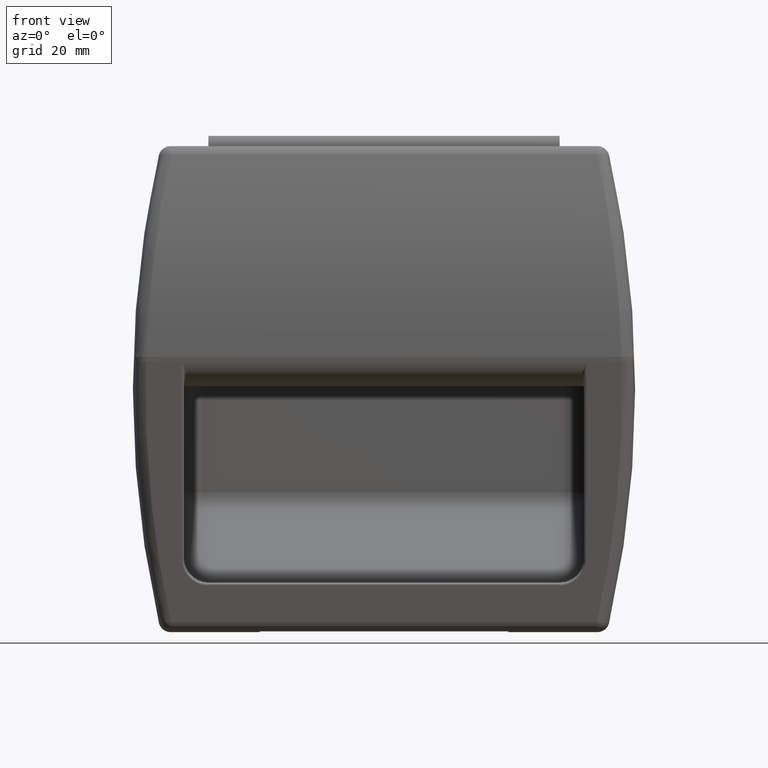
[diagram: clean part render]
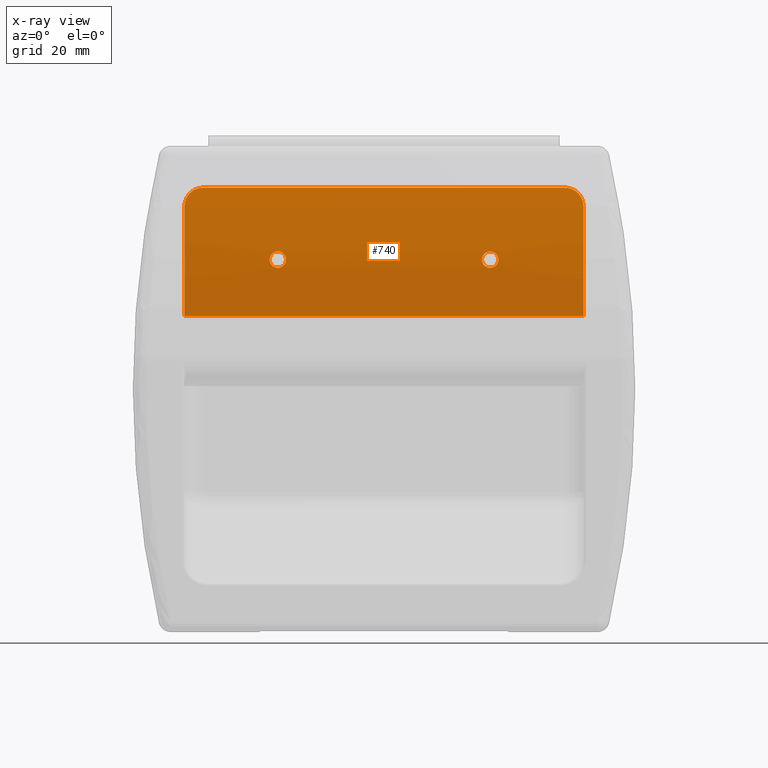
[diagram: x-ray — body ghosted, one internal face saturated and labeled with its STEP entity id]
A machine part, front view, then the same camera in x-ray: the body is ghosted and one INTERNAL B-rep face — a face not visible from any outside direction — is saturated and labeled: STEP entity #740.
In plain terms, the highlighted cylindrical surface (partial cylindrical patch) has radius 150 mm, axis along (1, 0, 0).
Its self-contained STEP definition (entity closure, byte-faithful):
#740=ADVANCED_FACE('',(#6782,#6783,#6784),#6781,.F.);
#6781=CYLINDRICAL_SURFACE('',#13339,1.50000000000E+002);
#6782=FACE_OUTER_BOUND('',#13340,.T.);
#6783=FACE_BOUND('',#13341,.T.);
#6784=FACE_BOUND('',#13342,.T.);
#13336=CARTESIAN_POINT('',(-1.00000000000E+003,-1.47175836261E+002,-2.67430042286E+000));
#13337=DIRECTION('',(-1.00000000000E+000,-0.00000000000E+000,0.00000000000E+000));
#13338=DIRECTION('',(0.00000000000E+000,-0.00000000000E+000,1.00000000000E+000));
#13339=AXIS2_PLACEMENT_3D('',#13336,#13337,#13338);
#13340=EDGE_LOOP('',(#18060,#18061,#18062,#18063,#18064,#18065));
#13341=EDGE_LOOP('',(#18066,#18067));
#13342=EDGE_LOOP('',(#18068,#18069));
#18060=ORIENTED_EDGE('',*,*,#20086,.T.);
#18061=ORIENTED_EDGE('',*,*,#20237,.T.);
#18062=ORIENTED_EDGE('',*,*,#20238,.T.);
#18063=ORIENTED_EDGE('',*,*,#20239,.F.);
#18064=ORIENTED_EDGE('',*,*,#19893,.F.);
#18065=ORIENTED_EDGE('',*,*,#20087,.T.);
#18066=ORIENTED_EDGE('',*,*,#20240,.T.);
#18067=ORIENTED_EDGE('',*,*,#20241,.T.);
#18068=ORIENTED_EDGE('',*,*,#20242,.F.);
#18069=ORIENTED_EDGE('',*,*,#20243,.F.);
#19893=EDGE_CURVE('',#28835,#28843,#28844,.T.);
#20086=EDGE_CURVE('',#30137,#30144,#30151,.T.);
#20087=EDGE_CURVE('',#28835,#30137,#30157,.T.);
#20237=EDGE_CURVE('',#30144,#30198,#31154,.T.);
#20238=EDGE_CURVE('',#30198,#28892,#31160,.T.);
#20239=EDGE_CURVE('',#28843,#28892,#31166,.T.);
#20240=EDGE_CURVE('',#31172,#31173,#31174,.T.);
#20241=EDGE_CURVE('',#31173,#31172,#31180,.T.);
#20242=EDGE_CURVE('',#31186,#31187,#31188,.T.);
#20243=EDGE_CURVE('',#31187,#31186,#31194,.T.);
#28835=VERTEX_POINT('',#37737);
#28843=VERTEX_POINT('',#37743);
#28844=(BOUNDED_CURVE() B_SPLINE_CURVE(3,(#37744,#37745,#37746,#37747,#37748,#37749,#37750,#37751,#37752,#37753,#37754,#37755,#37756,#37757,#37758,#37759,#37760,#37761),.UNSPECIFIED.,.F.,.F.) B_SPLINE_CURVE_WITH_KNOTS((4,2,2,2,2,2,2,2,4),(0.00000000000E+000,9.08258828072E-004,1.81651765614E-003,2.72477648422E-003,3.63303531229E-003,4.54129414036E-003,5.44955296843E-003,6.35781179650E-003,7.26607062457E-003),.UNSPECIFIED.) CURVE() GEOMETRIC_REPRESENTATION_ITEM() RATIONAL_B_SPLINE_CURVE((1.00000000000E+000,1.00000000000E+000,1.00000000000E+000,1.00000000000E+000,1.00000000000E+000,1.00000000000E+000,1.00000000000E+000,1.00000000000E+000,1.00000000000E+000,1.00000000000E+000,1.00000000000E+000,1.00000000000E+000,1.00000000000E+000,1.00000000000E+000,1.00000000000E+000,1.00000000000E+000,1.00000000000E+000,1.00000000000E+000)) REPRESENTATION_ITEM('') );
#28892=VERTEX_POINT('',#37804);
#30137=VERTEX_POINT('',#38889);
#30144=VERTEX_POINT('',#38894);
#30151=(BOUNDED_CURVE() B_SPLINE_CURVE(3,(#38899,#38900,#38901,#38902,#38903,#38904,#38905,#38906,#38907,#38908,#38909,#38910,#38911,#38912,#38913,#38914,#38915,#38916),.UNSPECIFIED.,.F.,.F.) B_SPLINE_CURVE_WITH_KNOTS((4,2,2,2,2,2,2,2,4),(0.00000000000E+000,9.08258828072E-004,1.81651765614E-003,2.72477648422E-003,3.63303531229E-003,4.54129414036E-003,5.44955296843E-003,6.35781179650E-003,7.26607062457E-003),.UNSPECIFIED.) CURVE() GEOMETRIC_REPRESENTATION_ITEM() RATIONAL_B_SPLINE_CURVE((1.00000000000E+000,1.00000000000E+000,1.00000000000E+000,1.00000000000E+000,1.00000000000E+000,1.00000000000E+000,1.00000000000E+000,1.00000000000E+000,1.00000000000E+000,1.00000000000E+000,1.00000000000E+000,1.00000000000E+000,1.00000000000E+000,1.00000000000E+000,1.00000000000E+000,1.00000000000E+000,1.00000000000E+000,1.00000000000E+000)) REPRESENTATION_ITEM('') );
#30157=LINE('',#38917,#38918);
#30198=VERTEX_POINT('',#38942);
#31154=CIRCLE('',#39637,1.50000000000E+002);
#31160=LINE('',#39638,#39639);
#31166=CIRCLE('',#39644,1.50000000000E+002);
#31172=VERTEX_POINT('',#39645);
#31173=VERTEX_POINT('',#39646);
#31174=(BOUNDED_CURVE() B_SPLINE_CURVE(3,(#39647,#39648,#39649,#39650,#39651,#39652,#39653,#39654,#39655,#39656,#39657,#39658,#39659,#39660,#39661,#39662,#39663,#39664,#39665,#39666,#39667,#39668,#39669,#39670,#39671,#39672,#39673,#39674,#39675,#39676,#39677,#39678),.UNSPECIFIED.,.F.,.F.) B_SPLINE_CURVE_WITH_KNOTS((4,2,2,2,2,2,2,2,2,2,2,2,2,2,2,4),(1.23330994336E-002,1.27313672789E-002,1.31296351242E-002,1.35279029695E-002,1.39261708148E-002,1.47227065054E-002,1.51209743507E-002,1.55192421960E-002,1.59175100413E-002,1.63157778866E-002,1.67140457319E-002,1.71123135772E-002,1.75105814225E-002,1.79088492678E-002,1.83071171131E-002,1.87053849584E-002),.UNSPECIFIED.) CURVE() GEOMETRIC_REPRESENTATION_ITEM() RATIONAL_B_SPLINE_CURVE((1.00000000000E+000,1.00000000000E+000,1.00000000000E+000,1.00000000000E+000,1.00000000000E+000,1.00000000000E+000,1.00000000000E+000,1.00000000000E+000,1.00000000000E+000,1.00000000000E+000,1.00000000000E+000,1.00000000000E+000,1.00000000000E+000,1.00000000000E+000,1.00000000000E+000,1.00000000000E+000,1.00000000000E+000,1.00000000000E+000,1.00000000000E+000,1.00000000000E+000,1.00000000000E+000,1.00000000000E+000,1.00000000000E+000,1.00000000000E+000,1.00000000000E+000,1.00000000000E+000,1.00000000000E+000,1.00000000000E+000,1.00000000000E+000,1.00000000000E+000,1.00000000000E+000,1.00000000000E+000)) REPRESENTATION_ITEM('') );
#31180=(BOUNDED_CURVE() B_SPLINE_CURVE(3,(#39679,#39680,#39681,#39682,#39683,#39684,#39685,#39686,#39687,#39688,#39689,#39690,#39691,#39692,#39693,#39694,#39695,#39696,#39697,#39698,#39699,#39700,#39701,#39702,#39703,#39704,#39705,#39706,#39707,#39708),.UNSPECIFIED.,.F.,.F.) B_SPLINE_CURVE_WITH_KNOTS((4,2,2,2,2,2,2,2,2,2,2,2,2,2,4),(1.87053849584E-002,1.91036528037E-002,1.95019206490E-002,2.02984563396E-002,2.06967241849E-002,2.10949920302E-002,2.14932598755E-002,2.18915277208E-002,2.26880634114E-002,2.30863312567E-002,2.34845991020E-002,2.38828669473E-002,2.42811347926E-002,2.46794026379E-002,2.50776704832E-002),.UNSPECIFIED.) CURVE() GEOMETRIC_REPRESENTATION_ITEM() RATIONAL_B_SPLINE_CURVE((1.00000000000E+000,1.00000000000E+000,1.00000000000E+000,1.00000000000E+000,1.00000000000E+000,1.00000000000E+000,1.00000000000E+000,1.00000000000E+000,1.00000000000E+000,1.00000000000E+000,1.00000000000E+000,1.00000000000E+000,1.00000000000E+000,1.00000000000E+000,1.00000000000E+000,1.00000000000E+000,1.00000000000E+000,1.00000000000E+000,1.00000000000E+000,1.00000000000E+000,1.00000000000E+000,1.00000000000E+000,1.00000000000E+000,1.00000000000E+000,1.00000000000E+000,1.00000000000E+000,1.00000000000E+000,1.00000000000E+000,1.00000000000E+000,1.00000000000E+000)) REPRESENTATION_ITEM('') );
#31186=VERTEX_POINT('',#39709);
#31187=VERTEX_POINT('',#39710);
#31188=(BOUNDED_CURVE() B_SPLINE_CURVE(3,(#39711,#39712,#39713,#39714,#39715,#39716,#39717,#39718,#39719,#39720,#39721,#39722,#39723,#39724,#39725,#39726,#39727,#39728,#39729,#39730,#39731,#39732,#39733,#39734,#39735,#39736,#39737,#39738,#39739,#39740),.UNSPECIFIED.,.F.,.F.) B_SPLINE_CURVE_WITH_KNOTS((4,2,2,2,2,2,2,2,2,2,2,2,2,2,4),(1.87053849584E-002,1.91036528037E-002,1.95019206490E-002,2.02984563396E-002,2.06967241849E-002,2.10949920302E-002,2.14932598755E-002,2.18915277208E-002,2.26880634114E-002,2.30863312567E-002,2.34845991020E-002,2.38828669473E-002,2.42811347926E-002,2.46794026379E-002,2.50776704832E-002),.UNSPECIFIED.) CURVE() GEOMETRIC_REPRESENTATION_ITEM() RATIONAL_B_SPLINE_CURVE((1.00000000000E+000,1.00000000000E+000,1.00000000000E+000,1.00000000000E+000,1.00000000000E+000,1.00000000000E+000,1.00000000000E+000,1.00000000000E+000,1.00000000000E+000,1.00000000000E+000,1.00000000000E+000,1.00000000000E+000,1.00000000000E+000,1.00000000000E+000,1.00000000000E+000,1.00000000000E+000,1.00000000000E+000,1.00000000000E+000,1.00000000000E+000,1.00000000000E+000,1.00000000000E+000,1.00000000000E+000,1.00000000000E+000,1.00000000000E+000,1.00000000000E+000,1.00000000000E+000,1.00000000000E+000,1.00000000000E+000,1.00000000000E+000,1.00000000000E+000)) REPRESENTATION_ITEM('') );
#31194=(BOUNDED_CURVE() B_SPLINE_CURVE(3,(#39741,#39742,#39743,#39744,#39745,#39746,#39747,#39748,#39749,#39750,#39751,#39752,#39753,#39754,#39755,#39756,#39757,#39758,#39759,#39760,#39761,#39762,#39763,#39764,#39765,#39766,#39767,#39768,#39769,#39770,#39771,#39772),.UNSPECIFIED.,.F.,.F.) B_SPLINE_CURVE_WITH_KNOTS((4,2,2,2,2,2,2,2,2,2,2,2,2,2,2,4),(1.23330994336E-002,1.27313672789E-002,1.31296351242E-002,1.35279029695E-002,1.39261708148E-002,1.47227065054E-002,1.51209743507E-002,1.55192421960E-002,1.59175100413E-002,1.63157778866E-002,1.67140457319E-002,1.71123135772E-002,1.75105814225E-002,1.79088492678E-002,1.83071171131E-002,1.87053849584E-002),.UNSPECIFIED.) CURVE() GEOMETRIC_REPRESENTATION_ITEM() RATIONAL_B_SPLINE_CURVE((1.00000000000E+000,1.00000000000E+000,1.00000000000E+000,1.00000000000E+000,1.00000000000E+000,1.00000000000E+000,1.00000000000E+000,1.00000000000E+000,1.00000000000E+000,1.00000000000E+000,1.00000000000E+000,1.00000000000E+000,1.00000000000E+000,1.00000000000E+000,1.00000000000E+000,1.00000000000E+000,1.00000000000E+000,1.00000000000E+000,1.00000000000E+000,1.00000000000E+000,1.00000000000E+000,1.00000000000E+000,1.00000000000E+000,1.00000000000E+000,1.00000000000E+000,1.00000000000E+000,1.00000000000E+000,1.00000000000E+000,1.00000000000E+000,1.00000000000E+000,1.00000000000E+000,1.00000000000E+000)) REPRESENTATION_ITEM('') );
#37737=CARTESIAN_POINT('',(4.43499999997E+001,-3.84400463067E+000,4.15522305443E+001));
#37743=CARTESIAN_POINT('',(4.88499999997E+001,-2.52799392462E+000,3.70371803771E+001));
#37744=CARTESIAN_POINT('',(4.43499999997E+001,-3.84400463067E+000,4.15522305443E+001));
#37745=CARTESIAN_POINT('',(4.46541116868E+001,-3.84400463067E+000,4.15522305443E+001));
#37746=CARTESIAN_POINT('',(4.49567373665E+001,-3.83444212195E+000,4.15212738085E+001));
#37747=CARTESIAN_POINT('',(4.55490904051E+001,-3.79696730919E+000,4.13995466235E+001));
#37748=CARTESIAN_POINT('',(4.58338161271E+001,-3.76948100003E+000,4.13101528693E+001));
#37749=CARTESIAN_POINT('',(4.63814869866E+001,-3.69817833624E+000,4.10770028386E+001));
#37750=CARTESIAN_POINT('',(4.66471414503E+001,-3.65367669413E+000,4.09309793304E+001));
#37751=CARTESIAN_POINT('',(4.71357029073E+001,-3.55218318103E+000,4.05955156741E+001));
#37752=CARTESIAN_POINT('',(4.73602784853E+001,-3.49520805049E+000,4.04061514301E+001));
#37753=CARTESIAN_POINT('',(4.77710519988E+001,-3.36964481401E+000,3.99851364738E+001));
#37754=CARTESIAN_POINT('',(4.79571918697E+001,-3.30070799366E+000,3.97522486333E+001));
#37755=CARTESIAN_POINT('',(4.82751385882E+001,-3.15775772867E+000,3.92644364992E+001));
#37756=CARTESIAN_POINT('',(4.84094702356E+001,-3.08306764372E+000,3.90072695239E+001));
#37757=CARTESIAN_POINT('',(4.86285913773E+001,-2.92763941973E+000,3.84661535010E+001));
#37758=CARTESIAN_POINT('',(4.87116705308E+001,-2.84771593624E+000,3.81849746287E+001));
#37759=CARTESIAN_POINT('',(4.88218668109E+001,-2.68843949419E+000,3.76181163546E+001));
#37760=CARTESIAN_POINT('',(4.88499999997E+001,-2.60840235175E+000,3.73300655895E+001));
#37761=CARTESIAN_POINT('',(4.88499999997E+001,-2.52799392462E+000,3.70371803771E+001));
#37804=CARTESIAN_POINT('',(4.88499999997E+001,2.27738849453E+000,1.01215430454E+001));
#38889=CARTESIAN_POINT('',(-4.43499999997E+001,-3.84400463067E+000,4.15522305443E+001));
#38894=CARTESIAN_POINT('',(-4.88499999997E+001,-2.52799392462E+000,3.70371803771E+001));
#38899=CARTESIAN_POINT('',(-4.43499999997E+001,-3.84400463067E+000,4.15522305443E+001));
#38900=CARTESIAN_POINT('',(-4.46541116868E+001,-3.84400463067E+000,4.15522305443E+001));
#38901=CARTESIAN_POINT('',(-4.49567373665E+001,-3.83444212195E+000,4.15212738085E+001));
#38902=CARTESIAN_POINT('',(-4.55490904051E+001,-3.79696730919E+000,4.13995466235E+001));
#38903=CARTESIAN_POINT('',(-4.58338161271E+001,-3.76948100003E+000,4.13101528693E+001));
#38904=CARTESIAN_POINT('',(-4.63814869866E+001,-3.69817833624E+000,4.10770028386E+001));
#38905=CARTESIAN_POINT('',(-4.66471414503E+001,-3.65367669413E+000,4.09309793304E+001));
#38906=CARTESIAN_POINT('',(-4.71357029073E+001,-3.55218318103E+000,4.05955156741E+001));
#38907=CARTESIAN_POINT('',(-4.73602784853E+001,-3.49520805049E+000,4.04061514301E+001));
#38908=CARTESIAN_POINT('',(-4.77710519988E+001,-3.36964481401E+000,3.99851364738E+001));
#38909=CARTESIAN_POINT('',(-4.79571918697E+001,-3.30070799366E+000,3.97522486333E+001));
#38910=CARTESIAN_POINT('',(-4.82751385882E+001,-3.15775772867E+000,3.92644364992E+001));
#38911=CARTESIAN_POINT('',(-4.84094702356E+001,-3.08306764372E+000,3.90072695239E+001));
#38912=CARTESIAN_POINT('',(-4.86285913773E+001,-2.92763941973E+000,3.84661535010E+001));
#38913=CARTESIAN_POINT('',(-4.87116705308E+001,-2.84771593624E+000,3.81849746287E+001));
#38914=CARTESIAN_POINT('',(-4.88218668109E+001,-2.68843949419E+000,3.76181163546E+001));
#38915=CARTESIAN_POINT('',(-4.88499999997E+001,-2.60840235175E+000,3.73300655895E+001));
#38916=CARTESIAN_POINT('',(-4.88499999997E+001,-2.52799392462E+000,3.70371803771E+001));
#38917=CARTESIAN_POINT('',(4.43499999997E+001,-3.84400463067E+000,4.15522305443E+001));
#38918=VECTOR('',#38919,8.86999999995E+001);
#38919=DIRECTION('',(-1.00000000000E+000,0.00000000000E+000,0.00000000000E+000));
#38942=CARTESIAN_POINT('',(-4.88499999997E+001,2.27738849453E+000,1.01215430454E+001));
#39634=CARTESIAN_POINT('',(-4.88499999997E+001,-1.47175836261E+002,-2.67430042286E+000));
#39635=DIRECTION('',(-1.00000000000E+000,0.00000000000E+000,0.00000000000E+000));
#39636=DIRECTION('',(-0.00000000000E+000,-0.00000000000E+000,-1.00000000000E+000));
#39637=AXIS2_PLACEMENT_3D('',#39634,#39635,#39636);
#39638=CARTESIAN_POINT('',(-4.88499999997E+001,2.27738849453E+000,1.01215430454E+001));
#39639=VECTOR('',#39640,9.76999999995E+001);
#39640=DIRECTION('',(1.00000000000E+000,0.00000000000E+000,0.00000000000E+000));
#39641=CARTESIAN_POINT('',(4.88499999997E+001,-1.47175836261E+002,-2.67430042286E+000));
#39642=DIRECTION('',(-1.00000000000E+000,0.00000000000E+000,0.00000000000E+000));
#39643=DIRECTION('',(-0.00000000000E+000,-0.00000000000E+000,-1.00000000000E+000));
#39644=AXIS2_PLACEMENT_3D('',#39641,#39642,#39643);
#39645=CARTESIAN_POINT('',(-2.55920792867E+001,7.81258618352E-001,2.19975068631E+001));
#39646=CARTESIAN_POINT('',(-2.64056786796E+001,7.62004203610E-002,2.59060720920E+001));
#39647=CARTESIAN_POINT('',(-2.55920792867E+001,7.81258618352E-001,2.19975068631E+001));
#39648=CARTESIAN_POINT('',(-2.57222591807E+001,7.85772120793E-001,2.19704393402E+001));
#39649=CARTESIAN_POINT('',(-2.58538238824E+001,7.88095610822E-001,2.19564702861E+001));
#39650=CARTESIAN_POINT('',(-2.61197210351E+001,7.88387764138E-001,2.19547151751E+001));
#39651=CARTESIAN_POINT('',(-2.62531034299E+001,7.86306136528E-001,2.19672309353E+001));
#39652=CARTESIAN_POINT('',(-2.65118842400E+001,7.77916898211E-001,2.20175520116E+001));
#39653=CARTESIAN_POINT('',(-2.66374110983E+001,7.71654593310E-001,2.20550849663E+001));
#39654=CARTESIAN_POINT('',(-2.68807865632E+001,7.54964472450E-001,2.21547298879E+001));
#39655=CARTESIAN_POINT('',(-2.69987268909E+001,7.44456743057E-001,2.22173104746E+001));
#39656=CARTESIAN_POINT('',(-2.73254581262E+001,7.07850491481E-001,2.24341980331E+001));
#39657=CARTESIAN_POINT('',(-2.75155698475E+001,6.75667929080E-001,2.26235362987E+001));
#39658=CARTESIAN_POINT('',(-2.77330254568E+001,6.19867599737E-001,2.29468213079E+001));
#39659=CARTESIAN_POINT('',(-2.77955938734E+001,5.99711081490E-001,2.30628814019E+001));
#39660=CARTESIAN_POINT('',(-2.78961638418E+001,5.57597634864E-001,2.33035253135E+001));
#39661=CARTESIAN_POINT('',(-2.79341132393E+001,5.35803437569E-001,2.34271961361E+001));
#39662=CARTESIAN_POINT('',(-2.79858020237E+001,4.90711976057E-001,2.36811004812E+001));
#39663=CARTESIAN_POINT('',(-2.79993364080E+001,4.67224800409E-001,2.38123715650E+001));
#39664=CARTESIAN_POINT('',(-2.80006149309E+001,4.20584470776E-001,2.40710516919E+001));
#39665=CARTESIAN_POINT('',(-2.79887718883E+001,3.97235632269E-001,2.41995773257E+001));
#39666=CARTESIAN_POINT('',(-2.79397235834E+001,3.50497519109E-001,2.44549770216E+001));
#39667=CARTESIAN_POINT('',(-2.79024149422E+001,3.27291184054E-001,2.45808316761E+001));
#39668=CARTESIAN_POINT('',(-2.78052685264E+001,2.82839377119E-001,2.48203137926E+001));
#39669=CARTESIAN_POINT('',(-2.77451899759E+001,2.61346045344E-001,2.49352950294E+001));
#39670=CARTESIAN_POINT('',(-2.76010531374E+001,2.20044918364E-001,2.51549413711E+001));
#39671=CARTESIAN_POINT('',(-2.75193418579E+001,2.00907045068E-001,2.52560492835E+001));
#39672=CARTESIAN_POINT('',(-2.73372734338E+001,1.65653253206E-001,2.54414312937E+001));
#39673=CARTESIAN_POINT('',(-2.72356970015E+001,1.49388134456E-001,2.55264782346E+001));
#39674=CARTESIAN_POINT('',(-2.70186780612E+001,1.21025223035E-001,2.56742490465E+001));
#39675=CARTESIAN_POINT('',(-2.69040803224E+001,1.08963958887E-001,2.57367951283E+001));
#39676=CARTESIAN_POINT('',(-2.66627627569E+001,8.91487168668E-002,2.58393265948E+001));
#39677=CARTESIAN_POINT('',(-2.65351309685E+001,8.13946845505E-002,2.58793101601E+001));
#39678=CARTESIAN_POINT('',(-2.64056786796E+001,7.62004203610E-002,2.59060720920E+001));
#39679=CARTESIAN_POINT('',(-2.64056786796E+001,7.62004203610E-002,2.59060720920E+001));
#39680=CARTESIAN_POINT('',(-2.62762263907E+001,7.10061561716E-002,2.59328340238E+001));
#39681=CARTESIAN_POINT('',(-2.61430118117E+001,6.82940445545E-002,2.59467773180E+001));
#39682=CARTESIAN_POINT('',(-2.58799891857E+001,6.80006317034E-002,2.59482867698E+001));
#39683=CARTESIAN_POINT('',(-2.57493674252E+001,7.03487770339E-002,2.59362158998E+001));
#39684=CARTESIAN_POINT('',(-2.53602081926E+001,8.49537659676E-002,2.58609817899E+001));
#39685=CARTESIAN_POINT('',(-2.51134721624E+001,1.04545836683E-001,2.57600281351E+001));
#39686=CARTESIAN_POINT('',(-2.47838120744E+001,1.46496633995E-001,2.55415768122E+001));
#39687=CARTESIAN_POINT('',(-2.46827973879E+001,1.62268597402E-001,2.54591594957E+001));
#39688=CARTESIAN_POINT('',(-2.44978782186E+001,1.97163525003E-001,2.52757916043E+001));
#39689=CARTESIAN_POINT('',(-2.44133359603E+001,2.16512376630E-001,2.51736367362E+001));
#39690=CARTESIAN_POINT('',(-2.42679315387E+001,2.57098599294E-001,2.49579589746E+001));
#39691=CARTESIAN_POINT('',(-2.42063587745E+001,2.78402120505E-001,2.48441016497E+001));
#39692=CARTESIAN_POINT('',(-2.41054912631E+001,3.22948506338E-001,2.46043242025E+001));
#39693=CARTESIAN_POINT('',(-2.40666546060E+001,3.46145479476E-001,2.44786265062E+001));
#39694=CARTESIAN_POINT('',(-2.39887600038E+001,4.15656621479E-001,2.40991449820E+001));
#39695=CARTESIAN_POINT('',(-2.39868081971E+001,4.63634699626E-001,2.38333031279E+001));
#39696=CARTESIAN_POINT('',(-2.40591634936E+001,5.31302227732E-001,2.34526559111E+001));
#39697=CARTESIAN_POINT('',(-2.40960569209E+001,5.53531619172E-001,2.33266409732E+001));
#39698=CARTESIAN_POINT('',(-2.41937433802E+001,5.95916992386E-001,2.30846597304E+001));
#39699=CARTESIAN_POINT('',(-2.42537950340E+001,6.15883596407E-001,2.29697970094E+001));
#39700=CARTESIAN_POINT('',(-2.43960360655E+001,6.53476899498E-001,2.27521889538E+001));
#39701=CARTESIAN_POINT('',(-2.44792856382E+001,6.71246558370E-001,2.26485952001E+001));
#39702=CARTESIAN_POINT('',(-2.46621137419E+001,7.03055154949E-001,2.24621753548E+001));
#39703=CARTESIAN_POINT('',(-2.47619821522E+001,7.17251911054E-001,2.23784462422E+001));
#39704=CARTESIAN_POINT('',(-2.49789094147E+001,7.42274140286E-001,2.22302826864E+001));
#39705=CARTESIAN_POINT('',(-2.50958038010E+001,7.53006835485E-001,2.21663935127E+001));
#39706=CARTESIAN_POINT('',(-2.53366986304E+001,7.70166135391E-001,2.20639911510E+001));
#39707=CARTESIAN_POINT('',(-2.54618993926E+001,7.76745115911E-001,2.20245743860E+001));
#39708=CARTESIAN_POINT('',(-2.55920792867E+001,7.81258618352E-001,2.19975068631E+001));
#39709=CARTESIAN_POINT('',(2.64056786796E+001,7.62004203610E-002,2.59060720920E+001));
#39710=CARTESIAN_POINT('',(2.55920792867E+001,7.81258618352E-001,2.19975068631E+001));
#39711=CARTESIAN_POINT('',(2.64056786796E+001,7.62004203610E-002,2.59060720920E+001));
#39712=CARTESIAN_POINT('',(2.62762263907E+001,7.10061561716E-002,2.59328340238E+001));
#39713=CARTESIAN_POINT('',(2.61430118117E+001,6.82940445545E-002,2.59467773180E+001));
#39714=CARTESIAN_POINT('',(2.58799891857E+001,6.80006317034E-002,2.59482867698E+001));
#39715=CARTESIAN_POINT('',(2.57493674252E+001,7.03487770339E-002,2.59362158998E+001));
#39716=CARTESIAN_POINT('',(2.53602081926E+001,8.49537659676E-002,2.58609817899E+001));
#39717=CARTESIAN_POINT('',(2.51134721624E+001,1.04545836683E-001,2.57600281351E+001));
#39718=CARTESIAN_POINT('',(2.47838120744E+001,1.46496633995E-001,2.55415768122E+001));
#39719=CARTESIAN_POINT('',(2.46827973879E+001,1.62268597402E-001,2.54591594957E+001));
#39720=CARTESIAN_POINT('',(2.44978782186E+001,1.97163525003E-001,2.52757916043E+001));
#39721=CARTESIAN_POINT('',(2.44133359603E+001,2.16512376630E-001,2.51736367362E+001));
#39722=CARTESIAN_POINT('',(2.42679315387E+001,2.57098599294E-001,2.49579589746E+001));
#39723=CARTESIAN_POINT('',(2.42063587745E+001,2.78402120505E-001,2.48441016497E+001));
#39724=CARTESIAN_POINT('',(2.41054912631E+001,3.22948506338E-001,2.46043242025E+001));
#39725=CARTESIAN_POINT('',(2.40666546060E+001,3.46145479476E-001,2.44786265062E+001));
#39726=CARTESIAN_POINT('',(2.39887600038E+001,4.15656621479E-001,2.40991449820E+001));
#39727=CARTESIAN_POINT('',(2.39868081971E+001,4.63634699626E-001,2.38333031279E+001));
#39728=CARTESIAN_POINT('',(2.40591634936E+001,5.31302227732E-001,2.34526559111E+001));
#39729=CARTESIAN_POINT('',(2.40960569209E+001,5.53531619172E-001,2.33266409732E+001));
#39730=CARTESIAN_POINT('',(2.41937433802E+001,5.95916992386E-001,2.30846597304E+001));
#39731=CARTESIAN_POINT('',(2.42537950340E+001,6.15883596407E-001,2.29697970094E+001));
#39732=CARTESIAN_POINT('',(2.43960360655E+001,6.53476899498E-001,2.27521889538E+001));
#39733=CARTESIAN_POINT('',(2.44792856382E+001,6.71246558370E-001,2.26485952001E+001));
#39734=CARTESIAN_POINT('',(2.46621137419E+001,7.03055154949E-001,2.24621753548E+001));
#39735=CARTESIAN_POINT('',(2.47619821522E+001,7.17251911054E-001,2.23784462422E+001));
#39736=CARTESIAN_POINT('',(2.49789094147E+001,7.42274140286E-001,2.22302826864E+001));
#39737=CARTESIAN_POINT('',(2.50958038010E+001,7.53006835485E-001,2.21663935127E+001));
#39738=CARTESIAN_POINT('',(2.53366986304E+001,7.70166135391E-001,2.20639911510E+001));
#39739=CARTESIAN_POINT('',(2.54618993926E+001,7.76745115911E-001,2.20245743860E+001));
#39740=CARTESIAN_POINT('',(2.55920792867E+001,7.81258618352E-001,2.19975068631E+001));
#39741=CARTESIAN_POINT('',(2.55920792867E+001,7.81258618352E-001,2.19975068631E+001));
#39742=CARTESIAN_POINT('',(2.57222591807E+001,7.85772120793E-001,2.19704393402E+001));
#39743=CARTESIAN_POINT('',(2.58538238824E+001,7.88095610822E-001,2.19564702861E+001));
#39744=CARTESIAN_POINT('',(2.61197210351E+001,7.88387764138E-001,2.19547151751E+001));
#39745=CARTESIAN_POINT('',(2.62531034299E+001,7.86306136528E-001,2.19672309353E+001));
#39746=CARTESIAN_POINT('',(2.65118842400E+001,7.77916898211E-001,2.20175520116E+001));
#39747=CARTESIAN_POINT('',(2.66374110983E+001,7.71654593310E-001,2.20550849663E+001));
#39748=CARTESIAN_POINT('',(2.68807865632E+001,7.54964472450E-001,2.21547298879E+001));
#39749=CARTESIAN_POINT('',(2.69987268909E+001,7.44456743057E-001,2.22173104746E+001));
#39750=CARTESIAN_POINT('',(2.73254581262E+001,7.07850491481E-001,2.24341980331E+001));
#39751=CARTESIAN_POINT('',(2.75155698475E+001,6.75667929080E-001,2.26235362987E+001));
#39752=CARTESIAN_POINT('',(2.77330254568E+001,6.19867599737E-001,2.29468213079E+001));
#39753=CARTESIAN_POINT('',(2.77955938734E+001,5.99711081490E-001,2.30628814019E+001));
#39754=CARTESIAN_POINT('',(2.78961638418E+001,5.57597634864E-001,2.33035253135E+001));
#39755=CARTESIAN_POINT('',(2.79341132393E+001,5.35803437569E-001,2.34271961361E+001));
#39756=CARTESIAN_POINT('',(2.79858020237E+001,4.90711976057E-001,2.36811004812E+001));
#39757=CARTESIAN_POINT('',(2.79993364080E+001,4.67224800409E-001,2.38123715650E+001));
#39758=CARTESIAN_POINT('',(2.80006149309E+001,4.20584470776E-001,2.40710516919E+001));
#39759=CARTESIAN_POINT('',(2.79887718883E+001,3.97235632269E-001,2.41995773257E+001));
#39760=CARTESIAN_POINT('',(2.79397235834E+001,3.50497519109E-001,2.44549770216E+001));
#39761=CARTESIAN_POINT('',(2.79024149422E+001,3.27291184054E-001,2.45808316761E+001));
#39762=CARTESIAN_POINT('',(2.78052685264E+001,2.82839377119E-001,2.48203137926E+001));
#39763=CARTESIAN_POINT('',(2.77451899759E+001,2.61346045344E-001,2.49352950294E+001));
#39764=CARTESIAN_POINT('',(2.76010531374E+001,2.20044918364E-001,2.51549413711E+001));
#39765=CARTESIAN_POINT('',(2.75193418579E+001,2.00907045068E-001,2.52560492835E+001));
#39766=CARTESIAN_POINT('',(2.73372734338E+001,1.65653253206E-001,2.54414312937E+001));
#39767=CARTESIAN_POINT('',(2.72356970015E+001,1.49388134456E-001,2.55264782346E+001));
#39768=CARTESIAN_POINT('',(2.70186780612E+001,1.21025223035E-001,2.56742490465E+001));
#39769=CARTESIAN_POINT('',(2.69040803224E+001,1.08963958887E-001,2.57367951283E+001));
#39770=CARTESIAN_POINT('',(2.66627627569E+001,8.91487168668E-002,2.58393265948E+001));
#39771=CARTESIAN_POINT('',(2.65351309685E+001,8.13946845505E-002,2.58793101601E+001));
#39772=CARTESIAN_POINT('',(2.64056786796E+001,7.62004203610E-002,2.59060720920E+001));